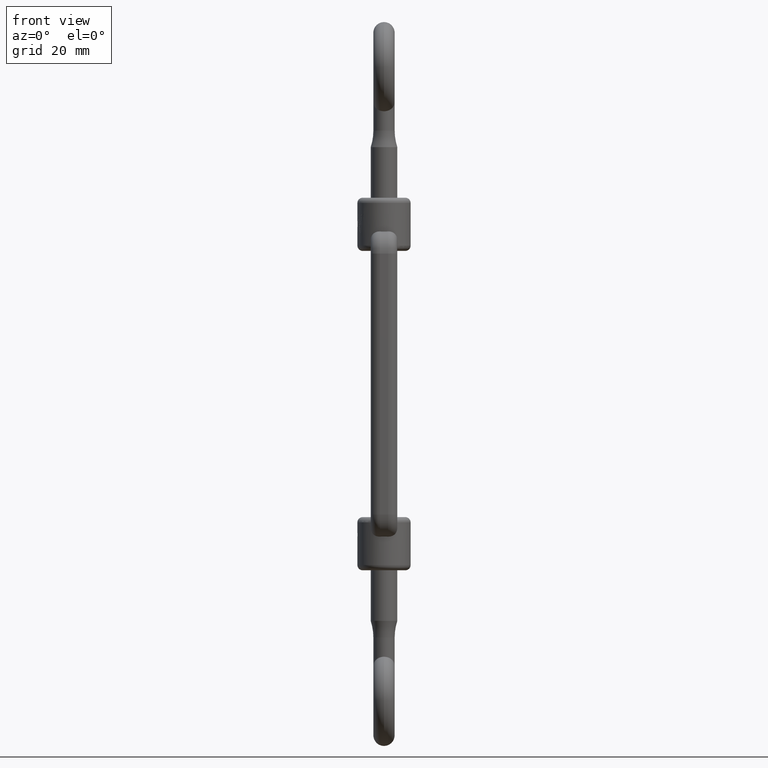
[diagram: clean part render]
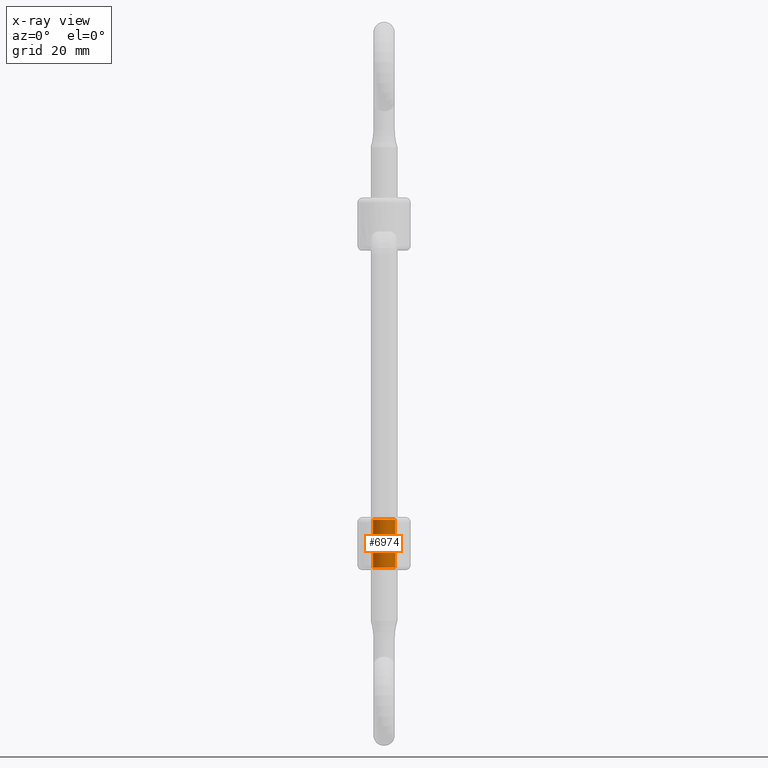
[diagram: x-ray — body ghosted, one internal face saturated and labeled with its STEP entity id]
A machine part, front view, then the same camera in x-ray: the body is ghosted and one INTERNAL B-rep face — a face not visible from any outside direction — is saturated and labeled: STEP entity #6974.
In plain terms, the highlighted cylindrical surface (edge-blend (fillet) strip) has radius 2.1 mm, axis along (-0, -0, -1).
Its self-contained STEP definition (entity closure, byte-faithful):
#144 = CARTESIAN_POINT ( 'NONE',  ( 0.0000000000000000000, 0.0000000000000000000, -34.49999999999999300 ) ) ;
#643 = CARTESIAN_POINT ( 'NONE',  ( 2.099999999999997400, 2.571758278209438500E-016, -34.49999999999999300 ) ) ;
#2992 = DIRECTION ( 'NONE',  ( -0.0000000000000000000, -0.0000000000000000000, 1.000000000000000000 ) ) ;
#4466 = DIRECTION ( 'NONE',  ( 0.0000000000000000000, 0.0000000000000000000, -1.000000000000000000 ) ) ;
#5789 = ORIENTED_EDGE ( 'NONE', *, *, #12774, .T. ) ;
#5807 = CIRCLE ( 'NONE', #6183, 2.099999999999997400 ) ;
#6040 = EDGE_CURVE ( 'NONE', #14874, #12324, #11892, .T. ) ;
#6067 = CARTESIAN_POINT ( 'NONE',  ( -2.099999999999997400, 0.0000000000000000000, -25.49999999999998900 ) ) ;
#6076 = AXIS2_PLACEMENT_3D ( 'NONE', #7249, #2992, #12743 ) ;
#6183 = AXIS2_PLACEMENT_3D ( 'NONE', #144, #4466, #10187 ) ;
#6974 = ADVANCED_FACE ( 'NONE', ( #14087 ), #10751, .F. ) ;
#7061 = EDGE_CURVE ( 'NONE', #9460, #16768, #15213, .T. ) ;
#7249 = CARTESIAN_POINT ( 'NONE',  ( 0.0000000000000000000, 0.0000000000000000000, -25.49999999999998900 ) ) ;
#7614 = CARTESIAN_POINT ( 'NONE',  ( 2.099999999999997400, 2.571758278209438500E-016, -25.49999999999998900 ) ) ;
#7896 = ORIENTED_EDGE ( 'NONE', *, *, #6040, .F. ) ;
#9460 = VERTEX_POINT ( 'NONE', #7614 ) ;
#10187 = DIRECTION ( 'NONE',  ( 1.000000000000000000, 0.0000000000000000000, 0.0000000000000000000 ) ) ;
#10483 = CARTESIAN_POINT ( 'NONE',  ( -2.099999999999997400, 0.0000000000000000000, -34.49999999999999300 ) ) ;
#10751 = CYLINDRICAL_SURFACE ( 'NONE', #14552, 2.099999999999997400 ) ;
#10852 = CIRCLE ( 'NONE', #6076, 2.099999999999997400 ) ;
#11009 = DIRECTION ( 'NONE',  ( -0.0000000000000000000, -0.0000000000000000000, -1.000000000000000000 ) ) ;
#11855 = VECTOR ( 'NONE', #11009, 1000.000000000000000 ) ;
#11892 = LINE ( 'NONE', #14386, #18137 ) ;
#12160 = ORIENTED_EDGE ( 'NONE', *, *, #7061, .T. ) ;
#12324 = VERTEX_POINT ( 'NONE', #10483 ) ;
#12446 = CARTESIAN_POINT ( 'NONE',  ( 2.099999999999997400, 2.571758278209438500E-016, -35.00000000000000000 ) ) ;
#12743 = DIRECTION ( 'NONE',  ( -1.000000000000000000, 0.0000000000000000000, 0.0000000000000000000 ) ) ;
#12774 = EDGE_CURVE ( 'NONE', #16768, #12324, #5807, .T. ) ;
#13761 = DIRECTION ( 'NONE',  ( -0.0000000000000000000, -0.0000000000000000000, -1.000000000000000000 ) ) ;
#14087 = FACE_OUTER_BOUND ( 'NONE', #15549, .T. ) ;
#14314 = DIRECTION ( 'NONE',  ( -0.0000000000000000000, -0.0000000000000000000, -1.000000000000000000 ) ) ;
#14386 = CARTESIAN_POINT ( 'NONE',  ( -2.099999999999997400, 0.0000000000000000000, -35.00000000000000000 ) ) ;
#14552 = AXIS2_PLACEMENT_3D ( 'NONE', #15285, #13761, #18020 ) ;
#14773 = EDGE_CURVE ( 'NONE', #14874, #9460, #10852, .T. ) ;
#14874 = VERTEX_POINT ( 'NONE', #6067 ) ;
#15213 = LINE ( 'NONE', #12446, #11855 ) ;
#15285 = CARTESIAN_POINT ( 'NONE',  ( 0.0000000000000000000, 0.0000000000000000000, -35.00000000000000000 ) ) ;
#15549 = EDGE_LOOP ( 'NONE', ( #16690, #12160, #5789, #7896 ) ) ;
#16690 = ORIENTED_EDGE ( 'NONE', *, *, #14773, .T. ) ;
#16768 = VERTEX_POINT ( 'NONE', #643 ) ;
#18020 = DIRECTION ( 'NONE',  ( -1.000000000000000000, 0.0000000000000000000, 0.0000000000000000000 ) ) ;
#18137 = VECTOR ( 'NONE', #14314, 1000.000000000000000 ) ;